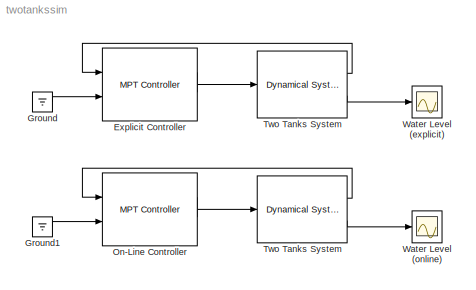
MODEL twotankssim
KIND model
CONFIG AbsTol = auto
CONFIG FixedStep = auto
CONFIG MaxStep = auto
CONFIG MinStep = auto
CONFIG RelTol = 1e-3
CONFIG Solver = ode45
CONFIG SolverMode = Auto
CONFIG StartTime = 0.0
CONFIG StopTime = 1000
BLOCK [Reference] Explicit Controller  REF=mpt_sim/MPT Controller  (lib defined in mdl_5038361577fd, mdl_5af201d48cda)
  Ports = [2, 2]
  SourceBlock = mpt_sim/MPT Controller
  SourceType = MPT Controller
  Ts = []
  ctrl = expc
  infbreak = on
BLOCK [Ground] Ground
BLOCK [Ground] Ground1
BLOCK [Reference] On-Line Controller  REF=mpt_sim/MPT Controller  (lib defined in mdl_5038361577fd, mdl_5af201d48cda)
  Ports = [2, 2]
  SourceBlock = mpt_sim/MPT Controller
  SourceType = MPT Controller
  Ts = []
  ctrl = onlc
  infbreak = on
BLOCK [Reference] Two Tanks System  REF=mpt_sim/Dynamical System  (lib defined in mdl_5038361577fd, mdl_5af201d48cda)
  Ports = [1, 2]
  SourceBlock = mpt_sim/Dynamical System
  SourceType = Dynamical System with Constraints
  Ts = []
  constr = on
  sysStruct = sysStruct
  x0 = [0; 0]
BLOCK [Reference] Two Tanks System   REF=mpt_sim/Dynamical System  (lib defined in mdl_5038361577fd, mdl_5af201d48cda)
  Ports = [1, 2]
  SourceBlock = mpt_sim/Dynamical System
  SourceType = Dynamical System with Constraints
  Ts = []
  constr = on
  sysStruct = sysStruct
  x0 = [0; 0]
BLOCK [Scope] Water Level (explicit)
  DataFormat = StructureWithTime
  Decimation = 1
  Floating = off
  Grid = on
  LimitDataPoints = on
  MaxDataPoints = 5000
  NumInputPorts = 1
  Ports = [1]
  SampleInput = off
  SampleTime = 0
  SaveName = ScopeData
  SaveToWorkspace = off
  TickLabels = OneTimeTick
  TimeRange = 1000
  YMax = 0.25
  YMin = 0
  ZoomMode = on
BLOCK [Scope] Water Level (online)
  DataFormat = StructureWithTime
  Decimation = 1
  Floating = off
  Grid = on
  LimitDataPoints = on
  MaxDataPoints = 5000
  NumInputPorts = 1
  Ports = [1]
  SampleInput = off
  SampleTime = 0
  SaveName = ScopeData1
  SaveToWorkspace = off
  TickLabels = OneTimeTick
  TimeRange = 1000
  YMax = 0.25
  YMin = 0
  ZoomMode = on
LINE Explicit Controller:1 -> Two Tanks System:1
LINE Ground1:1 -> On-Line Controller:2
LINE Ground:1 -> Explicit Controller:2
LINE On-Line Controller:1 -> Two Tanks System :1
LINE Two Tanks System :1 -> On-Line Controller:1
LINE Two Tanks System :2 -> Water Level (online):1
LINE Two Tanks System:1 -> Explicit Controller:1
LINE Two Tanks System:2 -> Water Level (explicit):1
